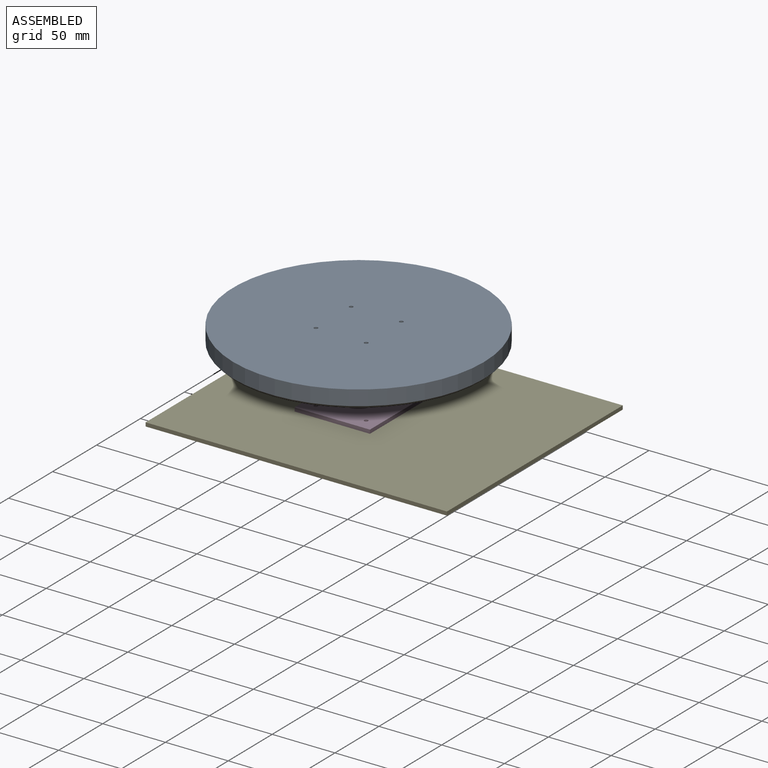
[diagram: assembled view]
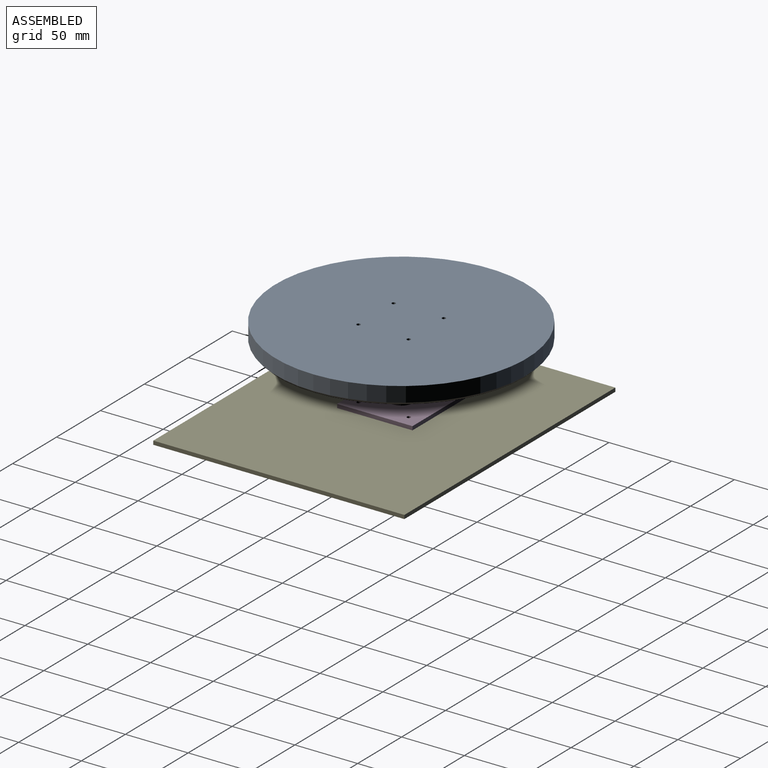
[diagram: assembled view, second angle]
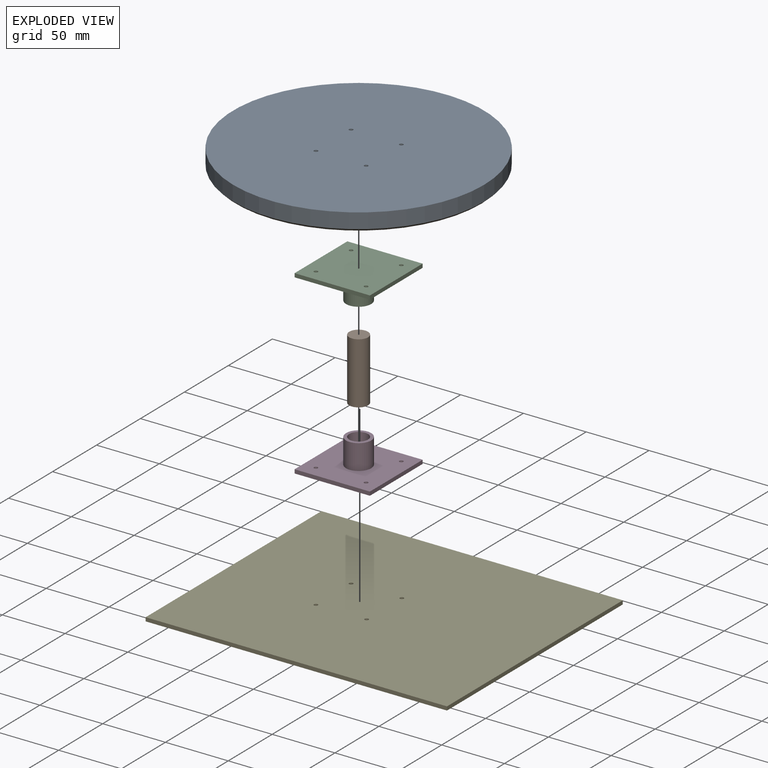
[diagram: exploded view]
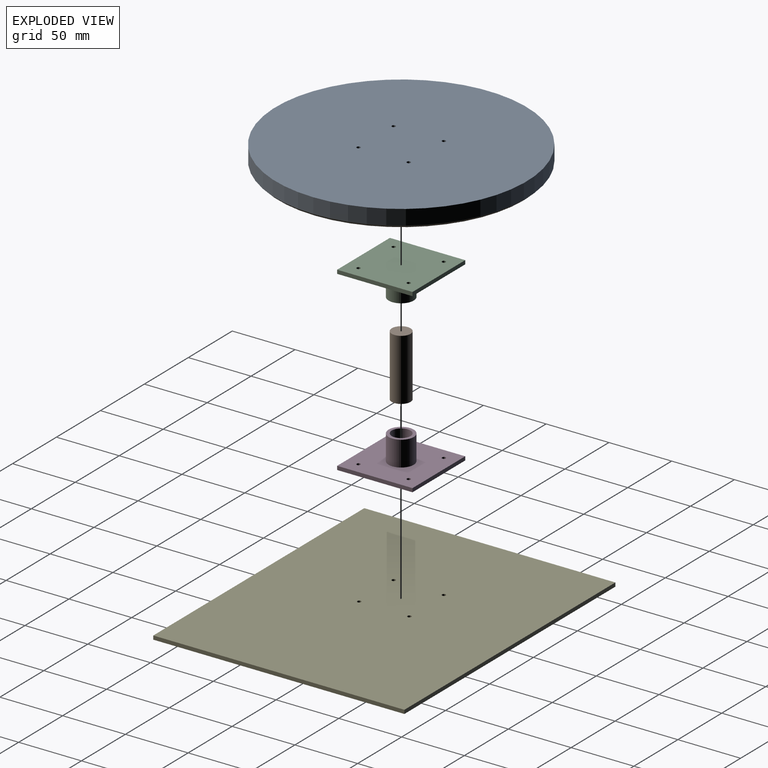
[diagram: exploded view, second angle]
ASSEMBLY  parts=5 mates=8
PART A: 269 faces, bbox 200x200x14 mm
  f0: cylinder r=90mm len=10mm, axis (0,0,1), area 27mm2, adj f3,f6,f256,f264
  f1: cylinder r=4.16mm len=10mm, axis (0,0,-1), area 31.3mm2, adj f2,f3,f256,f264
  f2: plane 10x3.88mm, normal (0.9,0.43,0), area 43mm2, adj f1,f256,f263,f264
  f3: plane 10x4.16mm, normal (-0.97,0.25,0), area 43mm2, adj f0,f1,f256,f264
  f4: cylinder r=90mm len=10mm, axis (0,0,1), area 27mm2, adj f7,f10,f256,f264
  f5: cylinder r=4.16mm len=10mm, axis (0,0,-1), area 31.3mm2, adj f6,f7,f256,f264
  f6: plane 10x3.68mm, normal (0.86,0.52,0), area 43mm2, adj f0,f5,f256,f264
  f7: plane 10x4.24mm, normal (-0.99,0.16,0), area 43mm2, adj f4,f5,f256,f264
  f8: cylinder r=90mm len=10mm, axis (0,0,1), area 27mm2, adj f11,f14,f256,f264
  f9: cylinder r=4.16mm len=10mm, axis (0,0,-1), area 31.3mm2, adj f10,f11,f256,f264
  f10: plane 10x3.45mm, normal (0.8,0.6,0), area 43mm2, adj f4,f9,f256,f264
  f11: plane 10x4.29mm, normal (-1,0.06,0), area 43mm2, adj f8,f9,f256,f264
  f12: cylinder r=90mm len=10mm, axis (0,0,1), area 27mm2, adj f15,f18,f256,f264
  f13: cylinder r=4.16mm len=10mm, axis (0,0,-1), area 31.3mm2, adj f14,f15,f256,f264
  f14: plane 10x3.19mm, normal (0.74,0.67,0), area 43mm2, adj f8,f13,f256,f264
  f15: plane 10x4.29mm, normal (-1,-0.04,0), area 43mm2, adj f12,f13,f256,f264
  f16: cylinder r=90mm len=10mm, axis (0,0,1), area 27mm2, adj f19,f22,f256,f264
  f17: cylinder r=4.16mm len=10mm, axis (0,0,-1), area 31.3mm2, adj f18,f19,f256,f264
  f18: plane 10x3.18mm, normal (0.67,0.74,0), area 43mm2, adj f12,f17,f256,f264
  f19: plane 10x4.26mm, normal (-0.99,-0.13,0), area 43mm2, adj f16,f17,f256,f264
  f20: cylinder r=90mm len=10mm, axis (0,0,1), area 27mm2, adj f23,f26,f256,f264
  f21: cylinder r=4.16mm len=10mm, axis (0,0,-1), area 31.3mm2, adj f22,f23,f256,f264
  f22: plane 10x3.44mm, normal (0.6,0.8,0), area 43mm2, adj f16,f21,f256,f264
  f23: plane 10x4.18mm, normal (-0.97,-0.23,0), area 43mm2, adj f20,f21,f256,f264
  f24: cylinder r=90mm len=10mm, axis (0,0,1), area 27mm2, adj f27,f30,f256,f264
  f25: cylinder r=4.16mm len=10mm, axis (0,0,-1), area 31.3mm2, adj f26,f27,f256,f264
  f26: plane 10x3.67mm, normal (0.52,0.86,0), area 43mm2, adj f20,f25,f256,f264
  f27: plane 10x4.07mm, normal (-0.95,-0.32,0), area 43mm2, adj f24,f25,f256,f264
  f28: cylinder r=90mm len=10mm, axis (0,0,1), area 27mm2, adj f31,f34,f256,f264
  f29: cylinder r=4.16mm len=10mm, axis (0,0,-1), area 31.3mm2, adj f30,f31,f256,f264
  f30: plane 10x3.87mm, normal (0.43,0.9,0), area 43mm2, adj f24,f29,f256,f264
  f31: plane 10x3.92mm, normal (-0.91,-0.41,0), area 43mm2, adj f28,f29,f256,f264
  f32: cylinder r=90mm len=10mm, axis (0,0,1), area 27mm2, adj f35,f38,f256,f264
  f33: cylinder r=4.16mm len=10mm, axis (0,0,-1), area 31.3mm2, adj f34,f35,f256,f264
  f34: plane 10x4.03mm, normal (0.34,0.94,0), area 43mm2, adj f28,f33,f256,f264
  f35: plane 10x3.73mm, normal (-0.87,-0.5,0), area 43mm2, adj f32,f33,f256,f264
  f36: cylinder r=90mm len=10mm, axis (0,0,1), area 27mm2, adj f39,f42,f256,f264
  f37: cylinder r=4.16mm len=10mm, axis (0,0,-1), area 31.3mm2, adj f38,f39,f256,f264
  f38: plane 10x4.16mm, normal (0.25,0.97,0), area 43mm2, adj f32,f37,f256,f264
  f39: plane 10x3.5mm, normal (-0.82,-0.58,0), area 43mm2, adj f36,f37,f256,f264
  f40: cylinder r=90mm len=10mm, axis (0,0,1), area 27mm2, adj f43,f46,f256,f264
  f41: cylinder r=4.16mm len=10mm, axis (0,0,-1), area 31.3mm2, adj f42,f43,f256,f264
  f42: plane 10x4.24mm, normal (0.16,0.99,0), area 43mm2, adj f36,f41,f256,f264
  f43: plane 10x3.25mm, normal (-0.76,-0.66,0), area 43mm2, adj f40,f41,f256,f264
  f44: cylinder r=90mm len=10mm, axis (0,0,1), area 27mm2, adj f47,f50,f256,f264
  f45: cylinder r=4.16mm len=10mm, axis (0,0,-1), area 31.3mm2, adj f46,f47,f256,f264
  f46: plane 10x4.29mm, normal (0.06,1,0), area 43mm2, adj f40,f45,f256,f264
  f47: plane 10x3.11mm, normal (-0.69,-0.72,0), area 43mm2, adj f44,f45,f256,f264
  f48: cylinder r=90mm len=10mm, axis (0,0,1), area 27mm2, adj f51,f54,f256,f264
  f49: cylinder r=4.16mm len=10mm, axis (0,0,-1), area 31.3mm2, adj f50,f51,f256,f264
  f50: plane 10x4.29mm, normal (-0.03,1,0), area 43mm2, adj f44,f49,f256,f264
  f51: plane 10x3.39mm, normal (-0.62,-0.79,0), area 43mm2, adj f48,f49,f256,f264
  f52: cylinder r=90mm len=10mm, axis (0,0,1), area 27mm2, adj f55,f58,f256,f264
  f53: cylinder r=4.16mm len=10mm, axis (0,0,-1), area 31.3mm2, adj f54,f55,f256,f264
  f54: plane 10x4.26mm, normal (-0.13,0.99,0), area 43mm2, adj f48,f53,f256,f264
  f55: plane 10x3.63mm, normal (-0.54,-0.84,0), area 43mm2, adj f52,f53,f256,f264
  f56: cylinder r=90mm len=10mm, axis (0,0,1), area 27mm2, adj f59,f62,f256,f264
  f57: cylinder r=4.16mm len=10mm, axis (0,0,-1), area 31.3mm2, adj f58,f59,f256,f264
  f58: plane 10x4.19mm, normal (-0.23,0.97,0), area 43mm2, adj f52,f57,f256,f264
  f59: plane 10x3.83mm, normal (-0.45,-0.89,0), area 43mm2, adj f56,f57,f256,f264
  f60: cylinder r=90mm len=10mm, axis (0,0,1), area 27mm2, adj f63,f66,f256,f264
  f61: cylinder r=4.16mm len=10mm, axis (0,0,-1), area 31.3mm2, adj f62,f63,f256,f264
  f62: plane 10x4.07mm, normal (-0.32,0.95,0), area 43mm2, adj f56,f61,f256,f264
  f63: plane 10x4mm, normal (-0.36,-0.93,0), area 43mm2, adj f60,f61,f256,f264
  f64: cylinder r=90mm len=10mm, axis (0,0,1), area 27mm2, adj f67,f70,f256,f264
  f65: cylinder r=4.16mm len=10mm, axis (0,0,-1), area 31.3mm2, adj f66,f67,f256,f264
  f66: plane 10x3.92mm, normal (-0.41,0.91,0), area 43mm2, adj f60,f65,f256,f264
  f67: plane 10x4.13mm, normal (-0.27,-0.96,0), area 43mm2, adj f64,f65,f256,f264
  f68: cylinder r=90mm len=10mm, axis (0,0,1), area 27mm2, adj f71,f74,f256,f264
  f69: cylinder r=4.16mm len=10mm, axis (0,0,-1), area 31.3mm2, adj f70,f71,f256,f264
  f70: plane 10x3.73mm, normal (-0.5,0.87,0), area 43mm2, adj f64,f69,f256,f264
  f71: plane 10x4.23mm, normal (-0.18,-0.98,0), area 43mm2, adj f68,f69,f256,f264
  f72: cylinder r=90mm len=10mm, axis (0,0,1), area 27mm2, adj f75,f78,f256,f264
  f73: cylinder r=4.16mm len=10mm, axis (0,0,-1), area 31.3mm2, adj f74,f75,f256,f264
  f74: plane 10x3.51mm, normal (-0.58,0.82,0), area 43mm2, adj f68,f73,f256,f264
  f75: plane 10x4.28mm, normal (-0.08,-1,0), area 43mm2, adj f72,f73,f256,f264
  f76: cylinder r=90mm len=10mm, axis (0,0,1), area 27mm2, adj f79,f82,f256,f264
  f77: cylinder r=4.16mm len=10mm, axis (0,0,-1), area 31.3mm2, adj f78,f79,f256,f264
  f78: plane 10x3.25mm, normal (-0.65,0.76,0), area 43mm2, adj f72,f77,f256,f264
  f79: plane 10x4.3mm, normal (0.01,-1,0), area 43mm2, adj f76,f77,f256,f264
  f80: cylinder r=90mm len=10mm, axis (0,0,1), area 27mm2, adj f83,f86,f256,f264
  f81: cylinder r=4.16mm len=10mm, axis (0,0,-1), area 31.3mm2, adj f82,f83,f256,f264
  f82: plane 10x3.11mm, normal (-0.72,0.69,0), area 43mm2, adj f76,f81,f256,f264
  f83: plane 10x4.27mm, normal (0.11,-0.99,0), area 43mm2, adj f80,f81,f256,f264
  f84: cylinder r=90mm len=10mm, axis (0,0,1), area 27mm2, adj f87,f90,f256,f264
  f85: cylinder r=4.16mm len=10mm, axis (0,0,-1), area 31.3mm2, adj f86,f87,f256,f264
  f86: plane 10x3.38mm, normal (-0.79,0.62,0), area 43mm2, adj f80,f85,f256,f264
  f87: plane 10x4.21mm, normal (0.21,-0.98,0), area 43mm2, adj f84,f85,f256,f264
  f88: cylinder r=90mm len=10mm, axis (0,0,1), area 27mm2, adj f91,f94,f256,f264
  f89: cylinder r=4.16mm len=10mm, axis (0,0,-1), area 31.3mm2, adj f90,f91,f256,f264
  f90: plane 10x3.62mm, normal (-0.84,0.54,0), area 43mm2, adj f84,f89,f256,f264
  f91: plane 10x4.1mm, normal (0.3,-0.95,0), area 43mm2, adj f88,f89,f256,f264
  f92: cylinder r=90mm len=10mm, axis (0,0,1), area 27mm2, adj f95,f98,f256,f264
  f93: cylinder r=4.16mm len=10mm, axis (0,0,-1), area 31.3mm2, adj f94,f95,f256,f264
  f94: plane 10x3.83mm, normal (-0.89,0.46,0), area 43mm2, adj f88,f93,f256,f264
  f95: plane 10x3.96mm, normal (0.39,-0.92,0), area 43mm2, adj f92,f93,f256,f264
  f96: cylinder r=90mm len=10mm, axis (0,0,1), area 27mm2, adj f99,f102,f256,f264
  f97: cylinder r=4.16mm len=10mm, axis (0,0,-1), area 31.3mm2, adj f98,f99,f256,f264
  f98: plane 10x4mm, normal (-0.93,0.37,0), area 43mm2, adj f92,f97,f256,f264
  f99: plane 10x3.78mm, normal (0.48,-0.88,0), area 43mm2, adj f96,f97,f256,f264
  f100: cylinder r=90mm len=10mm, axis (0,0,1), area 27mm2, adj f103,f106,f256,f264
  f101: cylinder r=4.16mm len=10mm, axis (0,0,-1), area 31.3mm2, adj f102,f103,f256,f264
  f102: plane 10x4.13mm, normal (-0.96,0.28,0), area 43mm2, adj f96,f101,f256,f264
  f103: plane 10x3.56mm, normal (0.56,-0.83,0), area 43mm2, adj f100,f101,f256,f264
  f104: cylinder r=90mm len=10mm, axis (0,0,1), area 27mm2, adj f107,f110,f256,f264
  f105: cylinder r=4.16mm len=10mm, axis (0,0,-1), area 31.3mm2, adj f106,f107,f256,f264
  f106: plane 10x4.23mm, normal (-0.98,0.18,0), area 43mm2, adj f100,f105,f256,f264
  f107: plane 10x3.31mm, normal (0.64,-0.77,0), area 43mm2, adj f104,f105,f256,f264
  f108: cylinder r=90mm len=10mm, axis (0,0,1), area 27mm2, adj f111,f114,f256,f264
  f109: cylinder r=4.16mm len=10mm, axis (0,0,-1), area 31.3mm2, adj f110,f111,f256,f264
  f110: plane 10x4.28mm, normal (-1,0.09,0), area 43mm2, adj f104,f109,f256,f264
  f111: plane 10x3.04mm, normal (0.71,-0.71,0), area 43mm2, adj f108,f109,f256,f264
  f112: cylinder r=90mm len=10mm, axis (0,0,1), area 27mm2, adj f115,f118,f256,f264
  f113: cylinder r=4.16mm len=10mm, axis (0,0,-1), area 31.3mm2, adj f114,f115,f256,f264
  f114: plane 10x4.3mm, normal (-1,-0.01,0), area 43mm2, adj f108,f113,f256,f264
  f115: plane 10x3.32mm, normal (0.77,-0.63,0), area 43mm2, adj f112,f113,f256,f264
  f116: cylinder r=90mm len=10mm, axis (0,0,1), area 27mm2, adj f119,f122,f256,f264
  f117: cylinder r=4.16mm len=10mm, axis (0,0,-1), area 31.3mm2, adj f118,f119,f256,f264
  f118: plane 10x4.27mm, normal (-0.99,-0.11,0), area 43mm2, adj f112,f117,f256,f264
  f119: plane 10x3.57mm, normal (0.83,-0.56,0), area 43mm2, adj f116,f117,f256,f264
  f120: cylinder r=90mm len=10mm, axis (0,0,1), area 27mm2, adj f123,f126,f256,f264
  f121: cylinder r=4.16mm len=10mm, axis (0,0,-1), area 31.3mm2, adj f122,f123,f256,f264
  f122: plane 10x4.21mm, normal (-0.98,-0.2,0), area 43mm2, adj f116,f121,f256,f264
  f123: plane 10x3.78mm, normal (0.88,-0.47,0), area 43mm2, adj f120,f121,f256,f264
  f124: cylinder r=90mm len=10mm, axis (0,0,1), area 27mm2, adj f127,f130,f256,f264
  f125: cylinder r=4.16mm len=10mm, axis (0,0,-1), area 31.3mm2, adj f126,f127,f256,f264
  f126: plane 10x4.1mm, normal (-0.96,-0.3,0), area 43mm2, adj f120,f125,f256,f264
  f127: plane 10x3.96mm, normal (0.92,-0.39,0), area 43mm2, adj f124,f125,f256,f264
  f128: cylinder r=90mm len=10mm, axis (0,0,1), area 27mm2, adj f131,f134,f256,f264
  f129: cylinder r=4.16mm len=10mm, axis (0,0,-1), area 31.3mm2, adj f130,f131,f256,f264
  f130: plane 10x3.96mm, normal (-0.92,-0.39,0), area 43mm2, adj f124,f129,f256,f264
  f131: plane 10x4.1mm, normal (0.96,-0.3,0), area 43mm2, adj f128,f129,f256,f264
  f132: cylinder r=90mm len=10mm, axis (0,0,1), area 27mm2, adj f135,f138,f256,f264
  f133: cylinder r=4.16mm len=10mm, axis (0,0,-1), area 31.3mm2, adj f134,f135,f256,f264
  f134: plane 10x3.78mm, normal (-0.88,-0.47,0), area 43mm2, adj f128,f133,f256,f264
  f135: plane 10x4.21mm, normal (0.98,-0.2,0), area 43mm2, adj f132,f133,f256,f264
  f136: cylinder r=90mm len=10mm, axis (0,0,1), area 27mm2, adj f139,f142,f256,f264
  f137: cylinder r=4.16mm len=10mm, axis (0,0,-1), area 31.3mm2, adj f138,f139,f256,f264
  f138: plane 10x3.57mm, normal (-0.83,-0.56,0), area 43mm2, adj f132,f137,f256,f264
  f139: plane 10x4.27mm, normal (0.99,-0.11,0), area 43mm2, adj f136,f137,f256,f264
  f140: cylinder r=90mm len=10mm, axis (0,0,1), area 27mm2, adj f143,f146,f256,f264
  f141: cylinder r=4.16mm len=10mm, axis (0,0,-1), area 31.3mm2, adj f142,f143,f256,f264
  f142: plane 10x3.32mm, normal (-0.77,-0.63,0), area 43mm2, adj f136,f141,f256,f264
  f143: plane 10x4.3mm, normal (1,-0.01,0), area 43mm2, adj f140,f141,f256,f264
  f144: cylinder r=90mm len=10mm, axis (0,0,1), area 27mm2, adj f147,f150,f256,f264
  f145: cylinder r=4.16mm len=10mm, axis (0,0,-1), area 31.3mm2, adj f146,f147,f256,f264
  f146: plane 10x3.04mm, normal (-0.71,-0.71,0), area 43mm2, adj f140,f145,f256,f264
  f147: plane 10x4.28mm, normal (1,0.09,0), area 43mm2, adj f144,f145,f256,f264
  f148: cylinder r=90mm len=10mm, axis (0,0,1), area 27mm2, adj f151,f154,f256,f264
  f149: cylinder r=4.16mm len=10mm, axis (0,0,-1), area 31.3mm2, adj f150,f151,f256,f264
  f150: plane 10x3.31mm, normal (-0.64,-0.77,0), area 43mm2, adj f144,f149,f256,f264
  f151: plane 10x4.23mm, normal (0.98,0.18,0), area 43mm2, adj f148,f149,f256,f264
  f152: cylinder r=90mm len=10mm, axis (0,0,1), area 27mm2, adj f155,f158,f256,f264
  f153: cylinder r=4.16mm len=10mm, axis (0,0,-1), area 31.3mm2, adj f154,f155,f256,f264
  f154: plane 10x3.56mm, normal (-0.56,-0.83,0), area 43mm2, adj f148,f153,f256,f264
  f155: plane 10x4.13mm, normal (0.96,0.28,0), area 43mm2, adj f152,f153,f256,f264
  f156: cylinder r=90mm len=10mm, axis (0,0,1), area 27mm2, adj f159,f162,f256,f264
  f157: cylinder r=4.16mm len=10mm, axis (0,0,-1), area 31.3mm2, adj f158,f159,f256,f264
  f158: plane 10x3.78mm, normal (-0.48,-0.88,0), area 43mm2, adj f152,f157,f256,f264
  f159: plane 10x4mm, normal (0.93,0.37,0), area 43mm2, adj f156,f157,f256,f264
  f160: cylinder r=90mm len=10mm, axis (0,0,1), area 27mm2, adj f163,f166,f256,f264
  f161: cylinder r=4.16mm len=10mm, axis (0,0,-1), area 31.3mm2, adj f162,f163,f256,f264
  f162: plane 10x3.96mm, normal (-0.39,-0.92,0), area 43mm2, adj f156,f161,f256,f264
  f163: plane 10x3.83mm, normal (0.89,0.46,0), area 43mm2, adj f160,f161,f256,f264
  f164: cylinder r=90mm len=10mm, axis (0,0,1), area 27mm2, adj f167,f170,f256,f264
  f165: cylinder r=4.16mm len=10mm, axis (0,0,-1), area 31.3mm2, adj f166,f167,f256,f264
  f166: plane 10x4.1mm, normal (-0.3,-0.95,0), area 43mm2, adj f160,f165,f256,f264
  f167: plane 10x3.62mm, normal (0.84,0.54,0), area 43mm2, adj f164,f165,f256,f264
  f168: cylinder r=90mm len=10mm, axis (0,0,1), area 27mm2, adj f171,f174,f256,f264
  f169: cylinder r=4.16mm len=10mm, axis (0,0,-1), area 31.3mm2, adj f170,f171,f256,f264
  f170: plane 10x4.21mm, normal (-0.21,-0.98,0), area 43mm2, adj f164,f169,f256,f264
  f171: plane 10x3.38mm, normal (0.79,0.62,0), area 43mm2, adj f168,f169,f256,f264
  f172: cylinder r=90mm len=10mm, axis (0,0,1), area 27mm2, adj f175,f178,f256,f264
  f173: cylinder r=4.16mm len=10mm, axis (0,0,-1), area 31.3mm2, adj f174,f175,f256,f264
  f174: plane 10x4.27mm, normal (-0.11,-0.99,0), area 43mm2, adj f168,f173,f256,f264
  f175: plane 10x3.11mm, normal (0.72,0.69,0), area 43mm2, adj f172,f173,f256,f264
  f176: cylinder r=90mm len=10mm, axis (0,0,1), area 27mm2, adj f179,f182,f256,f264
  f177: cylinder r=4.16mm len=10mm, axis (0,0,-1), area 31.3mm2, adj f178,f179,f256,f264
  f178: plane 10x4.3mm, normal (-0.01,-1,0), area 43mm2, adj f172,f177,f256,f264
  f179: plane 10x3.25mm, normal (0.65,0.76,0), area 43mm2, adj f176,f177,f256,f264
  f180: cylinder r=90mm len=10mm, axis (0,0,1), area 27mm2, adj f183,f186,f256,f264
  f181: cylinder r=4.16mm len=10mm, axis (0,0,-1), area 31.3mm2, adj f182,f183,f256,f264
  f182: plane 10x4.28mm, normal (0.08,-1,0), area 43mm2, adj f176,f181,f256,f264
  f183: plane 10x3.51mm, normal (0.58,0.82,0), area 43mm2, adj f180,f181,f256,f264
  f184: cylinder r=90mm len=10mm, axis (0,0,1), area 27mm2, adj f187,f190,f256,f264
  f185: cylinder r=4.16mm len=10mm, axis (0,0,-1), area 31.3mm2, adj f186,f187,f256,f264
  f186: plane 10x4.23mm, normal (0.18,-0.98,0), area 43mm2, adj f180,f185,f256,f264
  f187: plane 10x3.73mm, normal (0.5,0.87,0), area 43mm2, adj f184,f185,f256,f264
  f188: cylinder r=90mm len=10mm, axis (0,0,1), area 27mm2, adj f191,f194,f256,f264
  f189: cylinder r=4.16mm len=10mm, axis (0,0,-1), area 31.3mm2, adj f190,f191,f256,f264
  f190: plane 10x4.13mm, normal (0.27,-0.96,0), area 43mm2, adj f184,f189,f256,f264
  f191: plane 10x3.92mm, normal (0.41,0.91,0), area 43mm2, adj f188,f189,f256,f264
  f192: cylinder r=90mm len=10mm, axis (0,0,1), area 27mm2, adj f195,f198,f256,f264
  f193: cylinder r=4.16mm len=10mm, axis (0,0,-1), area 31.3mm2, adj f194,f195,f256,f264
  f194: plane 10x4mm, normal (0.36,-0.93,0), area 43mm2, adj f188,f193,f256,f264
  f195: plane 10x4.07mm, normal (0.32,0.95,0), area 43mm2, adj f192,f193,f256,f264
  f196: cylinder r=90mm len=10mm, axis (0,0,1), area 27mm2, adj f199,f202,f256,f264
  f197: cylinder r=4.16mm len=10mm, axis (0,0,-1), area 31.3mm2, adj f198,f199,f256,f264
  f198: plane 10x3.83mm, normal (0.45,-0.89,0), area 43mm2, adj f192,f197,f256,f264
  f199: plane 10x4.19mm, normal (0.23,0.97,0), area 43mm2, adj f196,f197,f256,f264
  f200: cylinder r=90mm len=10mm, axis (0,0,1), area 27mm2, adj f203,f206,f256,f264
  f201: cylinder r=4.16mm len=10mm, axis (0,0,-1), area 31.3mm2, adj f202,f203,f256,f264
  f202: plane 10x3.63mm, normal (0.54,-0.84,0), area 43mm2, adj f196,f201,f256,f264
  f203: plane 10x4.26mm, normal (0.13,0.99,0), area 43mm2, adj f200,f201,f256,f264
  f204: cylinder r=90mm len=10mm, axis (0,0,1), area 27mm2, adj f207,f210,f256,f264
  f205: cylinder r=4.16mm len=10mm, axis (0,0,-1), area 31.3mm2, adj f206,f207,f256,f264
  f206: plane 10x3.39mm, normal (0.62,-0.79,0), area 43mm2, adj f200,f205,f256,f264
  f207: plane 10x4.29mm, normal (0.03,1,0), area 43mm2, adj f204,f205,f256,f264
  f208: cylinder r=90mm len=10mm, axis (0,0,1), area 27mm2, adj f211,f214,f256,f264
  f209: cylinder r=4.16mm len=10mm, axis (0,0,-1), area 31.3mm2, adj f210,f211,f256,f264
  f210: plane 10x3.11mm, normal (0.69,-0.72,0), area 43mm2, adj f204,f209,f256,f264
  f211: plane 10x4.29mm, normal (-0.06,1,0), area 43mm2, adj f208,f209,f256,f264
  f212: cylinder r=90mm len=10mm, axis (0,0,1), area 27mm2, adj f215,f218,f256,f264
  f213: cylinder r=4.16mm len=10mm, axis (0,0,-1), area 31.3mm2, adj f214,f215,f256,f264
  f214: plane 10x3.25mm, normal (0.76,-0.66,0), area 43mm2, adj f208,f213,f256,f264
  f215: plane 10x4.24mm, normal (-0.16,0.99,0), area 43mm2, adj f212,f213,f256,f264
  f216: cylinder r=90mm len=10mm, axis (0,0,1), area 27mm2, adj f219,f222,f256,f264
  f217: cylinder r=4.16mm len=10mm, axis (0,0,-1), area 31.3mm2, adj f218,f219,f256,f264
  f218: plane 10x3.5mm, normal (0.82,-0.58,0), area 43mm2, adj f212,f217,f256,f264
  f219: plane 10x4.16mm, normal (-0.25,0.97,0), area 43mm2, adj f216,f217,f256,f264
  f220: cylinder r=90mm len=10mm, axis (0,0,1), area 27mm2, adj f223,f226,f256,f264
  f221: cylinder r=4.16mm len=10mm, axis (0,0,-1), area 31.3mm2, adj f222,f223,f256,f264
  f222: plane 10x3.73mm, normal (0.87,-0.5,0), area 43mm2, adj f216,f221,f256,f264
  f223: plane 10x4.03mm, normal (-0.34,0.94,0), area 43mm2, adj f220,f221,f256,f264
  f224: cylinder r=90mm len=10mm, axis (0,0,1), area 27mm2, adj f227,f230,f256,f264
  f225: cylinder r=4.16mm len=10mm, axis (0,0,-1), area 31.3mm2, adj f226,f227,f256,f264
  f226: plane 10x3.92mm, normal (0.91,-0.41,0), area 43mm2, adj f220,f225,f256,f264
  f227: plane 10x3.87mm, normal (-0.43,0.9,0), area 43mm2, adj f224,f225,f256,f264
  f228: cylinder r=90mm len=10mm, axis (0,0,1), area 27mm2, adj f231,f234,f256,f264
  f229: cylinder r=4.16mm len=10mm, axis (0,0,-1), area 31.3mm2, adj f230,f231,f256,f264
  f230: plane 10x4.07mm, normal (0.95,-0.32,0), area 43mm2, adj f224,f229,f256,f264
  f231: plane 10x3.67mm, normal (-0.52,0.86,0), area 43mm2, adj f228,f229,f256,f264
  f232: cylinder r=90mm len=10mm, axis (0,0,1), area 27mm2, adj f235,f238,f256,f264
  f233: cylinder r=4.16mm len=10mm, axis (0,0,-1), area 31.3mm2, adj f234,f235,f256,f264
  f234: plane 10x4.18mm, normal (0.97,-0.23,0), area 43mm2, adj f228,f233,f256,f264
  f235: plane 10x3.44mm, normal (-0.6,0.8,0), area 43mm2, adj f232,f233,f256,f264
  f236: cylinder r=90mm len=10mm, axis (0,0,1), area 27mm2, adj f239,f242,f256,f264
  f237: cylinder r=4.16mm len=10mm, axis (0,0,-1), area 31.3mm2, adj f238,f239,f256,f264
  f238: plane 10x4.26mm, normal (0.99,-0.13,0), area 43mm2, adj f232,f237,f256,f264
  f239: plane 10x3.18mm, normal (-0.67,0.74,0), area 43mm2, adj f236,f237,f256,f264
  f240: cylinder r=90mm len=10mm, axis (0,0,1), area 27mm2, adj f243,f246,f256,f264
  f241: cylinder r=4.16mm len=10mm, axis (0,0,-1), area 31.3mm2, adj f242,f243,f256,f264
  f242: plane 10x4.29mm, normal (1,-0.04,0), area 43mm2, adj f236,f241,f256,f264
  f243: plane 10x3.19mm, normal (-0.74,0.67,0), area 43mm2, adj f240,f241,f256,f264
  f244: cylinder r=90mm len=10mm, axis (0,0,1), area 27mm2, adj f247,f250,f256,f264
  f245: cylinder r=4.16mm len=10mm, axis (0,0,-1), area 31.3mm2, adj f246,f247,f256,f264
  f246: plane 10x4.29mm, normal (1,0.06,0), area 43mm2, adj f240,f245,f256,f264
  f247: plane 10x3.45mm, normal (-0.8,0.6,0), area 43mm2, adj f244,f245,f256,f264
  f248: cylinder r=90mm len=10mm, axis (0,0,1), area 27mm2, adj f251,f254,f256,f264
  f249: cylinder r=4.16mm len=10mm, axis (0,0,-1), area 31.3mm2, adj f250,f251,f256,f264
  f250: plane 10x4.24mm, normal (0.99,0.16,0), area 43mm2, adj f244,f249,f256,f264
  f251: plane 10x3.68mm, normal (-0.86,0.52,0), area 43mm2, adj f248,f249,f256,f264
  f252: cylinder r=90mm len=10mm, axis (0,0,1), area 27mm2, adj f255,f256,f264,f267
  f253: cylinder r=4.16mm len=10mm, axis (0,0,-1), area 31.3mm2, adj f254,f255,f256,f264
  f254: plane 10x4.16mm, normal (0.97,0.25,0), area 43mm2, adj f248,f253,f256,f264
  f255: plane 10x3.88mm, normal (-0.9,0.43,0), area 43mm2, adj f252,f253,f256,f264
  f256: plane 188.51x188.45mm, normal (0,0,-1), area 26633.6mm2, adj f0,f1,f2,f3,f4,f5,f6,f7
  f257: cylinder r=1.5mm len=4mm, axis (0,0,-1), area 37.7mm2, adj f256,f262
  f258: cylinder r=1.5mm len=4mm, axis (0,0,-1), area 37.7mm2, adj f256,f262
  f259: cylinder r=100mm len=200mm, axis (0,0,-1), area 7539.8mm2, adj f262,f265
  f260: cylinder r=1.5mm len=4mm, axis (0,0,-1), area 37.7mm2, adj f256,f262
  f261: cylinder r=1.5mm len=4mm, axis (0,0,-1), area 37.7mm2, adj f256,f262
  f262: plane 200x200mm, normal (0,0,1), area 31387.7mm2, adj f257,f258,f259,f260,f261
  f263: cylinder r=90mm len=10mm, axis (0,0,1), area 27mm2, adj f2,f256,f264,f268
  f264: plane 196x196mm, normal (0,0,-1), area 3510mm2, adj f0,f1,f2,f3,f4,f5,f6,f7
  f265: cone r=100mm half-angle=45deg, axis (0,0,1), area 1759.4mm2, adj f259,f264
  f266: cylinder r=4.16mm len=10mm, axis (0,0,-1), area 31.3mm2, adj f256,f264,f267,f268
  f267: plane 10x4.04mm, normal (0.94,0.34,0), area 43mm2, adj f252,f256,f264,f266
  f268: plane 10x4.04mm, normal (-0.94,0.34,0), area 43mm2, adj f256,f263,f264,f266
PART B: 3 faces, bbox 15x15x49 mm
  f0: cylinder r=7.5mm len=49mm, axis (0,0,-1), area 2309.1mm2, adj f1,f2
  f1: plane 15x15mm, normal (0,0,1), area 176.7mm2, adj f0
  f2: plane 15x15mm, normal (0,0,-1), area 176.7mm2, adj f0
PART C: 14 faces, bbox 60x60x23 mm
  f0: plane 60x3mm, normal (0,1,0), area 180mm2, adj f1,f3,f8,f9
  f1: plane 60x3mm, normal (-1,0,0), area 180mm2, adj f0,f2,f8,f9
  f2: plane 60x3mm, normal (0,-1,0), area 180mm2, adj f1,f3,f8,f9
  f3: plane 60x3mm, normal (1,0,0), area 180mm2, adj f0,f2,f8,f9
  f4: cylinder r=1.5mm len=3mm, axis (0,0,-1), area 28.3mm2, adj f8,f9
  f5: cylinder r=1.5mm len=3mm, axis (0,0,-1), area 28.3mm2, adj f8,f9
  f6: cylinder r=1.5mm len=3mm, axis (0,0,-1), area 28.3mm2, adj f8,f9
  f7: cylinder r=1.5mm len=3mm, axis (0,0,-1), area 28.3mm2, adj f8,f9
  f8: plane 60x60mm, normal (0,0,1), area 3571.7mm2, adj f0,f1,f2,f3,f4,f5,f6,f7
  f9: plane 60x60mm, normal (0,0,-1), area 3257.6mm2, adj f0,f1,f2,f3,f4,f5,f6,f7
  f10: cylinder r=7.5mm len=20mm, axis (0,0,1), area 942.5mm2, adj f12,f13
  f11: cylinder r=10mm len=20mm, axis (0,0,1), area 1256.6mm2, adj f9,f12
  f12: plane 20x20mm, normal (0,0,-1), area 137.4mm2, adj f10,f11
  f13: plane 15x15mm, normal (0,0,-1), area 176.7mm2, adj f10
PART D: same geometry as C
PART E: 10 faces, bbox 240x200x3 mm
  f0: plane 240x3mm, normal (0,1,0), area 720mm2, adj f1,f6,f8,f9
  f1: plane 200x3mm, normal (-1,0,0), area 600mm2, adj f0,f2,f8,f9
  f2: plane 240x3mm, normal (0,-1,0), area 720mm2, adj f1,f6,f8,f9
  f3: cylinder r=1.5mm len=3mm, axis (0,0,-1), area 28.3mm2, adj f8,f9
  f4: cylinder r=1.5mm len=3mm, axis (0,0,-1), area 28.3mm2, adj f8,f9
  f5: cylinder r=1.5mm len=3mm, axis (0,0,-1), area 28.3mm2, adj f8,f9
  f6: plane 200x3mm, normal (1,0,0), area 600mm2, adj f0,f2,f8,f9
  f7: cylinder r=1.5mm len=3mm, axis (0,0,-1), area 28.3mm2, adj f8,f9
  f8: plane 240x200mm, normal (0,0,1), area 47971.7mm2, adj f0,f1,f2,f3,f4,f5,f6,f7
  f9: plane 240x200mm, normal (0,0,-1), area 47971.7mm2, adj f0,f1,f2,f3,f4,f5,f6,f7
PLACE A rot(axis=(0.67,-0.1,-0.74),0deg) t=(188.31,86.47,14.32)mm
PLACE B t=(188.31,86.47,-37.68)mm
PLACE C rot(axis=(0.67,-0.1,-0.74),0deg) t=(188.31,86.47,11.32)mm
PLACE D rot(axis=(-1,0,0),180deg) t=(188.31,86.47,-37.68)mm
PLACE E t=(188.3,87.05,-43.68)mm
MATE fastened C.f10 <-> B.f0  axis (0,0,-1) through (188.31,86.47,11.32)mm
MATE slider E.f7 <-> D.f7  axis (0,0,1) through (168.31,106.47,-40.68)mm
MATE slider B.f0 <-> C.f10  axis (0,0,1) through (188.31,86.47,11.32)mm
MATE fastened A.f0 <-> C.f10  axis (0,0,-1) through (188.31,86.47,14.32)mm
MATE planar E.f8 <-> D.f10  axis (0,0,1) through (208.31,87.05,-40.68)mm
MATE slider C.f10 <-> A.f0  axis (0,0,1) through (188.31,86.47,14.32)mm
MATE slider B.f0 <-> D.f10  axis (0,0,-1) through (188.31,86.47,-37.68)mm
MATE fastened D.f10 <-> B.f0  axis (0,0,1) through (188.31,86.47,-37.68)mm
